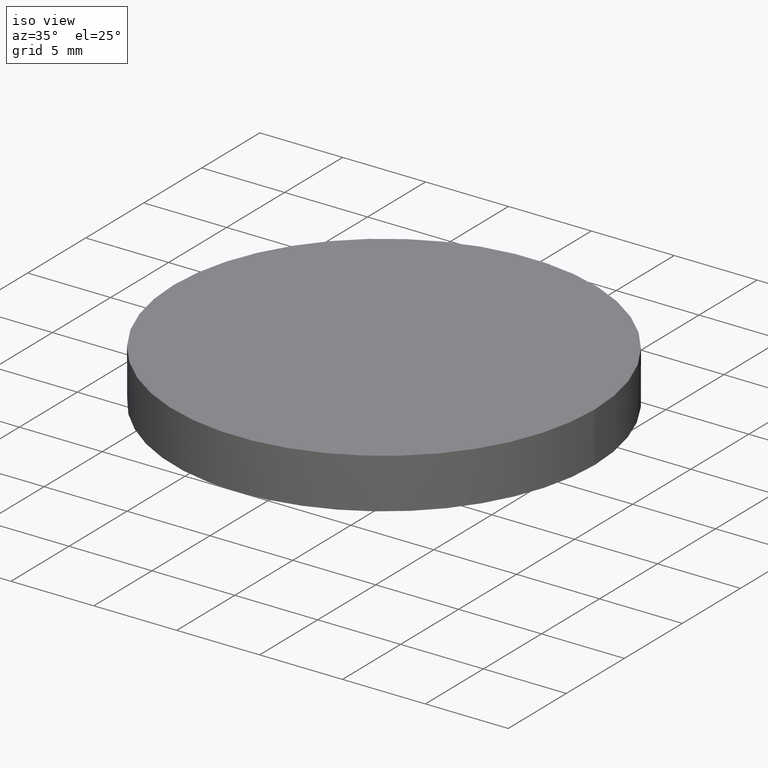
[diagram: clean part render]
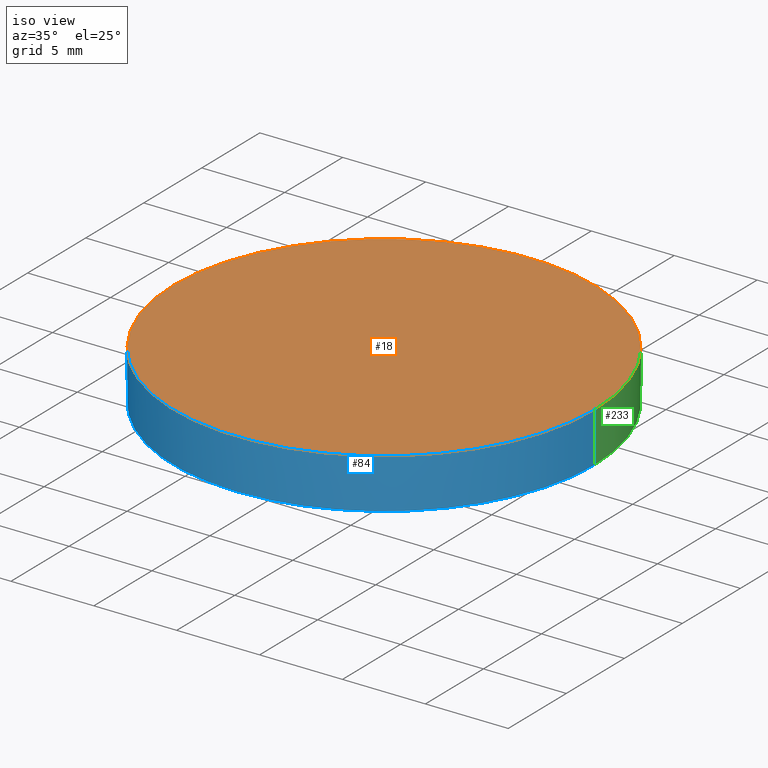
[diagram: same view with three faces highlighted in distinct colors, each labeled with its STEP entity id]
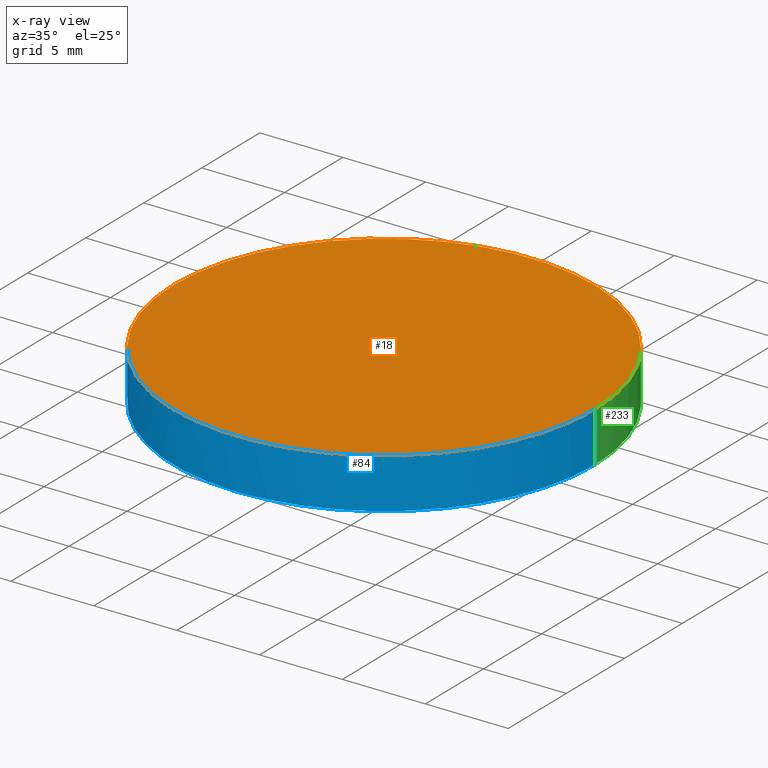
[diagram: x-ray of the same camera — body ghosted, the three highlighted faces saturated]
A machine part, iso view with three faces highlighted in distinct colors.
The next image is the same camera in x-ray (body ghosted, the three faces saturated) — at least one of them is partly hidden behind the body in this view.
Their STEP definitions:

[orange] entity #18 — the highlighted planar face has unit normal (0, 0, 1).
#2 = DIRECTION ( 'NONE',  ( -0.0000000000000000000, -0.0000000000000000000, -1.000000000000000000 ) ) ;
#13 = VERTEX_POINT ( 'NONE', #105 ) ;
#17 = DIRECTION ( 'NONE',  ( 1.000000000000000000, 0.0000000000000000000, -0.0000000000000000000 ) ) ;
#18 = ADVANCED_FACE ( 'NONE', ( #118 ), #196, .T. ) ;
#23 = ORIENTED_EDGE ( 'NONE', *, *, #179, .F. ) ;
#24 = DIRECTION ( 'NONE',  ( 1.000000000000000000, 0.0000000000000000000, 0.0000000000000000000 ) ) ;
#25 = CARTESIAN_POINT ( 'NONE',  ( 12.69999999999999900, 2.442490654175340100E-015, 4.000000000000000000 ) ) ;
#26 = AXIS2_PLACEMENT_3D ( 'NONE', #141, #57, #41 ) ;
#41 = DIRECTION ( 'NONE',  ( 1.000000000000000000, 0.0000000000000000000, 0.0000000000000000000 ) ) ;
#49 = CARTESIAN_POINT ( 'NONE',  ( 0.0000000000000000000, 26.11199999999999800, 4.000000000000000000 ) ) ;
#57 = DIRECTION ( 'NONE',  ( -0.0000000000000000000, -0.0000000000000000000, -1.000000000000000000 ) ) ;
#64 = ORIENTED_EDGE ( 'NONE', *, *, #149, .F. ) ;
#75 = AXIS2_PLACEMENT_3D ( 'NONE', #49, #121, #17 ) ;
#86 = CIRCLE ( 'NONE', #26, 12.69999999999999900 ) ;
#105 = CARTESIAN_POINT ( 'NONE',  ( -12.69999999999999900, 3.997792089092478900E-015, 4.000000000000000000 ) ) ;
#118 = FACE_OUTER_BOUND ( 'NONE', #138, .T. ) ;
#121 = DIRECTION ( 'NONE',  ( 0.0000000000000000000, 0.0000000000000000000, 1.000000000000000000 ) ) ;
#126 = VERTEX_POINT ( 'NONE', #25 ) ;
#136 = AXIS2_PLACEMENT_3D ( 'NONE', #222, #2, #24 ) ;
#138 = EDGE_LOOP ( 'NONE', ( #23, #64 ) ) ;
#141 = CARTESIAN_POINT ( 'NONE',  ( 4.996003610813200500E-016, 2.442490654175340100E-015, 4.000000000000000000 ) ) ;
#149 = EDGE_CURVE ( 'NONE', #13, #126, #155, .T. ) ;
#155 = CIRCLE ( 'NONE', #136, 12.69999999999999900 ) ;
#179 = EDGE_CURVE ( 'NONE', #126, #13, #86, .T. ) ;
#196 = PLANE ( 'NONE',  #75 ) ;
#222 = CARTESIAN_POINT ( 'NONE',  ( 4.996003610813200500E-016, 2.442490654175340100E-015, 4.000000000000000000 ) ) ;

[blue] entity #84 — the highlighted cylindrical surface (partial cylindrical patch) has radius 12.7 mm, axis along (0, 0, 1).
#4 = EDGE_LOOP ( 'NONE', ( #152, #89, #12, #69, #15 ) ) ;
#12 = ORIENTED_EDGE ( 'NONE', *, *, #166, .F. ) ;
#13 = VERTEX_POINT ( 'NONE', #105 ) ;
#15 = ORIENTED_EDGE ( 'NONE', *, *, #179, .T. ) ;
#21 = DIRECTION ( 'NONE',  ( 0.0000000000000000000, 0.0000000000000000000, 1.000000000000000000 ) ) ;
#22 = DIRECTION ( 'NONE',  ( 1.000000000000000000, 0.0000000000000000000, 0.0000000000000000000 ) ) ;
#25 = CARTESIAN_POINT ( 'NONE',  ( 12.69999999999999900, 2.442490654175340100E-015, 4.000000000000000000 ) ) ;
#26 = AXIS2_PLACEMENT_3D ( 'NONE', #141, #57, #41 ) ;
#27 = CARTESIAN_POINT ( 'NONE',  ( 4.996003610813200500E-016, 2.442490654175340100E-015, 0.9737012005033109900 ) ) ;
#37 = AXIS2_PLACEMENT_3D ( 'NONE', #183, #73, #203 ) ;
#41 = DIRECTION ( 'NONE',  ( 1.000000000000000000, 0.0000000000000000000, 0.0000000000000000000 ) ) ;
#45 = AXIS2_PLACEMENT_3D ( 'NONE', #27, #169, #228 ) ;
#53 = CARTESIAN_POINT ( 'NONE',  ( -12.69999999999999900, 3.997792089092478900E-015, 0.9737012005033109900 ) ) ;
#55 = VECTOR ( 'NONE', #201, 1000.000000000000000 ) ;
#57 = DIRECTION ( 'NONE',  ( -0.0000000000000000000, -0.0000000000000000000, -1.000000000000000000 ) ) ;
#69 = ORIENTED_EDGE ( 'NONE', *, *, #90, .T. ) ;
#71 = CARTESIAN_POINT ( 'NONE',  ( 12.69999999999999900, 2.442490654175340100E-015, 0.9737012005033109900 ) ) ;
#72 = DIRECTION ( 'NONE',  ( -0.0000000000000000000, -0.0000000000000000000, -1.000000000000000000 ) ) ;
#73 = DIRECTION ( 'NONE',  ( 0.0000000000000000000, 0.0000000000000000000, 1.000000000000000000 ) ) ;
#78 = FACE_OUTER_BOUND ( 'NONE', #4, .T. ) ;
#84 = ADVANCED_FACE ( 'NONE', ( #78 ), #215, .T. ) ;
#86 = CIRCLE ( 'NONE', #26, 12.69999999999999900 ) ;
#88 = CARTESIAN_POINT ( 'NONE',  ( 12.69999999999999900, 2.442490654175340100E-015, 0.9737012005033109900 ) ) ;
#89 = ORIENTED_EDGE ( 'NONE', *, *, #217, .F. ) ;
#90 = EDGE_CURVE ( 'NONE', #120, #126, #117, .T. ) ;
#99 = LINE ( 'NONE', #157, #55 ) ;
#105 = CARTESIAN_POINT ( 'NONE',  ( -12.69999999999999900, 3.997792089092478900E-015, 4.000000000000000000 ) ) ;
#107 = VECTOR ( 'NONE', #21, 1000.000000000000000 ) ;
#108 = CIRCLE ( 'NONE', #45, 12.69999999999999900 ) ;
#109 = CARTESIAN_POINT ( 'NONE',  ( 4.996003610813200500E-016, 2.442490654175340100E-015, 0.9737012005033109900 ) ) ;
#117 = LINE ( 'NONE', #71, #107 ) ;
#120 = VERTEX_POINT ( 'NONE', #88 ) ;
#126 = VERTEX_POINT ( 'NONE', #25 ) ;
#141 = CARTESIAN_POINT ( 'NONE',  ( 4.996003610813200500E-016, 2.442490654175340100E-015, 4.000000000000000000 ) ) ;
#152 = ORIENTED_EDGE ( 'NONE', *, *, #175, .F. ) ;
#157 = CARTESIAN_POINT ( 'NONE',  ( -12.69999999999999900, 3.997792089092478900E-015, 0.9737012005033109900 ) ) ;
#160 = CIRCLE ( 'NONE', #162, 12.69999999999999900 ) ;
#162 = AXIS2_PLACEMENT_3D ( 'NONE', #109, #72, #22 ) ;
#165 = VERTEX_POINT ( 'NONE', #226 ) ;
#166 = EDGE_CURVE ( 'NONE', #120, #165, #160, .T. ) ;
#169 = DIRECTION ( 'NONE',  ( -0.0000000000000000000, -0.0000000000000000000, -1.000000000000000000 ) ) ;
#175 = EDGE_CURVE ( 'NONE', #177, #13, #99, .T. ) ;
#177 = VERTEX_POINT ( 'NONE', #53 ) ;
#179 = EDGE_CURVE ( 'NONE', #126, #13, #86, .T. ) ;
#183 = CARTESIAN_POINT ( 'NONE',  ( 4.996003610813200500E-016, 2.442490654175340100E-015, 0.9737012005033109900 ) ) ;
#201 = DIRECTION ( 'NONE',  ( 0.0000000000000000000, 0.0000000000000000000, 1.000000000000000000 ) ) ;
#203 = DIRECTION ( 'NONE',  ( 1.000000000000000000, 0.0000000000000000000, 0.0000000000000000000 ) ) ;
#215 = CYLINDRICAL_SURFACE ( 'NONE', #37, 12.69999999999999900 ) ;
#217 = EDGE_CURVE ( 'NONE', #165, #177, #108, .T. ) ;
#226 = CARTESIAN_POINT ( 'NONE',  ( -2.902535605672694400E-014, -12.70000000000002400, 0.9737012005033203200 ) ) ;
#228 = DIRECTION ( 'NONE',  ( 1.000000000000000000, 8.881784197001252300E-016, 0.0000000000000000000 ) ) ;

[green] entity #233 — the highlighted cylindrical surface (partial cylindrical patch) has radius 12.7 mm, axis along (0, 0, 1).
#2 = DIRECTION ( 'NONE',  ( -0.0000000000000000000, -0.0000000000000000000, -1.000000000000000000 ) ) ;
#9 = DIRECTION ( 'NONE',  ( 1.000000000000000000, 0.0000000000000000000, 0.0000000000000000000 ) ) ;
#13 = VERTEX_POINT ( 'NONE', #105 ) ;
#19 = EDGE_LOOP ( 'NONE', ( #61, #104, #213, #209, #67 ) ) ;
#21 = DIRECTION ( 'NONE',  ( 0.0000000000000000000, 0.0000000000000000000, 1.000000000000000000 ) ) ;
#24 = DIRECTION ( 'NONE',  ( 1.000000000000000000, 0.0000000000000000000, 0.0000000000000000000 ) ) ;
#25 = CARTESIAN_POINT ( 'NONE',  ( 12.69999999999999900, 2.442490654175340100E-015, 4.000000000000000000 ) ) ;
#46 = AXIS2_PLACEMENT_3D ( 'NONE', #188, #91, #9 ) ;
#48 = FACE_OUTER_BOUND ( 'NONE', #19, .T. ) ;
#53 = CARTESIAN_POINT ( 'NONE',  ( -12.69999999999999900, 3.997792089092478900E-015, 0.9737012005033109900 ) ) ;
#55 = VECTOR ( 'NONE', #201, 1000.000000000000000 ) ;
#61 = ORIENTED_EDGE ( 'NONE', *, *, #212, .F. ) ;
#63 = EDGE_CURVE ( 'NONE', #74, #120, #150, .T. ) ;
#67 = ORIENTED_EDGE ( 'NONE', *, *, #63, .F. ) ;
#71 = CARTESIAN_POINT ( 'NONE',  ( 12.69999999999999900, 2.442490654175340100E-015, 0.9737012005033109900 ) ) ;
#74 = VERTEX_POINT ( 'NONE', #181 ) ;
#88 = CARTESIAN_POINT ( 'NONE',  ( 12.69999999999999900, 2.442490654175340100E-015, 0.9737012005033109900 ) ) ;
#90 = EDGE_CURVE ( 'NONE', #120, #126, #117, .T. ) ;
#91 = DIRECTION ( 'NONE',  ( 0.0000000000000000000, 0.0000000000000000000, 1.000000000000000000 ) ) ;
#99 = LINE ( 'NONE', #157, #55 ) ;
#104 = ORIENTED_EDGE ( 'NONE', *, *, #175, .T. ) ;
#105 = CARTESIAN_POINT ( 'NONE',  ( -12.69999999999999900, 3.997792089092478900E-015, 4.000000000000000000 ) ) ;
#107 = VECTOR ( 'NONE', #21, 1000.000000000000000 ) ;
#110 = AXIS2_PLACEMENT_3D ( 'NONE', #220, #184, #161 ) ;
#117 = LINE ( 'NONE', #71, #107 ) ;
#120 = VERTEX_POINT ( 'NONE', #88 ) ;
#126 = VERTEX_POINT ( 'NONE', #25 ) ;
#127 = CARTESIAN_POINT ( 'NONE',  ( 4.996003610813200500E-016, 2.442490654175340100E-015, 0.9737012005033109900 ) ) ;
#131 = CIRCLE ( 'NONE', #194, 12.69999999999999900 ) ;
#136 = AXIS2_PLACEMENT_3D ( 'NONE', #222, #2, #24 ) ;
#149 = EDGE_CURVE ( 'NONE', #13, #126, #155, .T. ) ;
#150 = CIRCLE ( 'NONE', #110, 12.69999999999999900 ) ;
#155 = CIRCLE ( 'NONE', #136, 12.69999999999999900 ) ;
#157 = CARTESIAN_POINT ( 'NONE',  ( -12.69999999999999900, 3.997792089092478900E-015, 0.9737012005033109900 ) ) ;
#161 = DIRECTION ( 'NONE',  ( 1.000000000000000000, -8.881784197001252300E-016, 0.0000000000000000000 ) ) ;
#167 = DIRECTION ( 'NONE',  ( 1.000000000000000000, 8.881784197001252300E-016, 0.0000000000000000000 ) ) ;
#175 = EDGE_CURVE ( 'NONE', #177, #13, #99, .T. ) ;
#177 = VERTEX_POINT ( 'NONE', #53 ) ;
#181 = CARTESIAN_POINT ( 'NONE',  ( -2.902535605672694400E-014, 12.70000000000003300, 0.9737012005033203200 ) ) ;
#184 = DIRECTION ( 'NONE',  ( -0.0000000000000000000, -0.0000000000000000000, -1.000000000000000000 ) ) ;
#185 = DIRECTION ( 'NONE',  ( -0.0000000000000000000, -0.0000000000000000000, -1.000000000000000000 ) ) ;
#188 = CARTESIAN_POINT ( 'NONE',  ( 4.996003610813200500E-016, 2.442490654175340100E-015, 0.9737012005033109900 ) ) ;
#194 = AXIS2_PLACEMENT_3D ( 'NONE', #127, #185, #167 ) ;
#201 = DIRECTION ( 'NONE',  ( 0.0000000000000000000, 0.0000000000000000000, 1.000000000000000000 ) ) ;
#209 = ORIENTED_EDGE ( 'NONE', *, *, #90, .F. ) ;
#212 = EDGE_CURVE ( 'NONE', #177, #74, #131, .T. ) ;
#213 = ORIENTED_EDGE ( 'NONE', *, *, #149, .T. ) ;
#220 = CARTESIAN_POINT ( 'NONE',  ( 4.996003610813200500E-016, 2.442490654175340100E-015, 0.9737012005033109900 ) ) ;
#222 = CARTESIAN_POINT ( 'NONE',  ( 4.996003610813200500E-016, 2.442490654175340100E-015, 4.000000000000000000 ) ) ;
#229 = CYLINDRICAL_SURFACE ( 'NONE', #46, 12.69999999999999900 ) ;
#233 = ADVANCED_FACE ( 'NONE', ( #48 ), #229, .T. ) ;